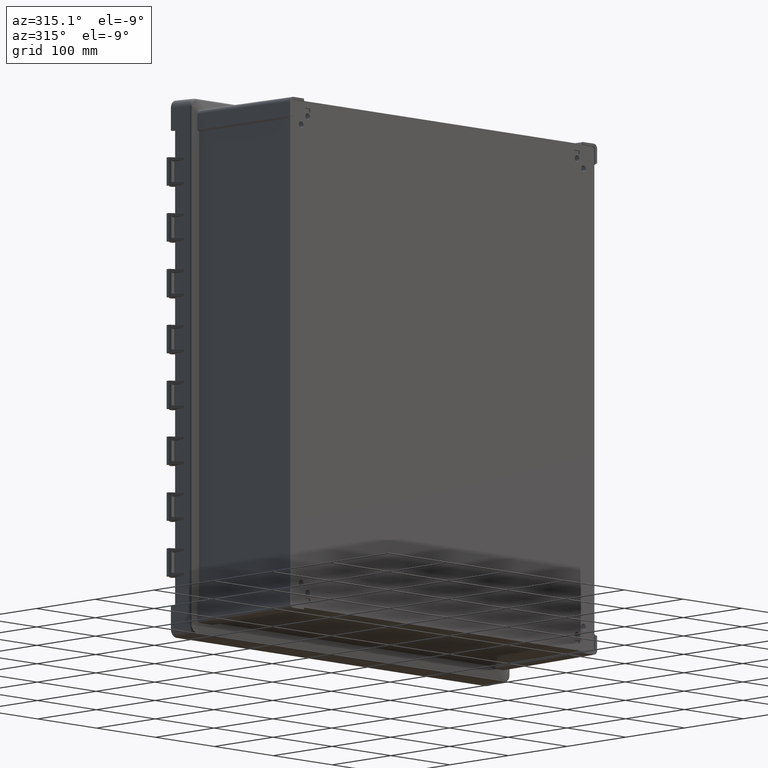
[diagram: clean part render]
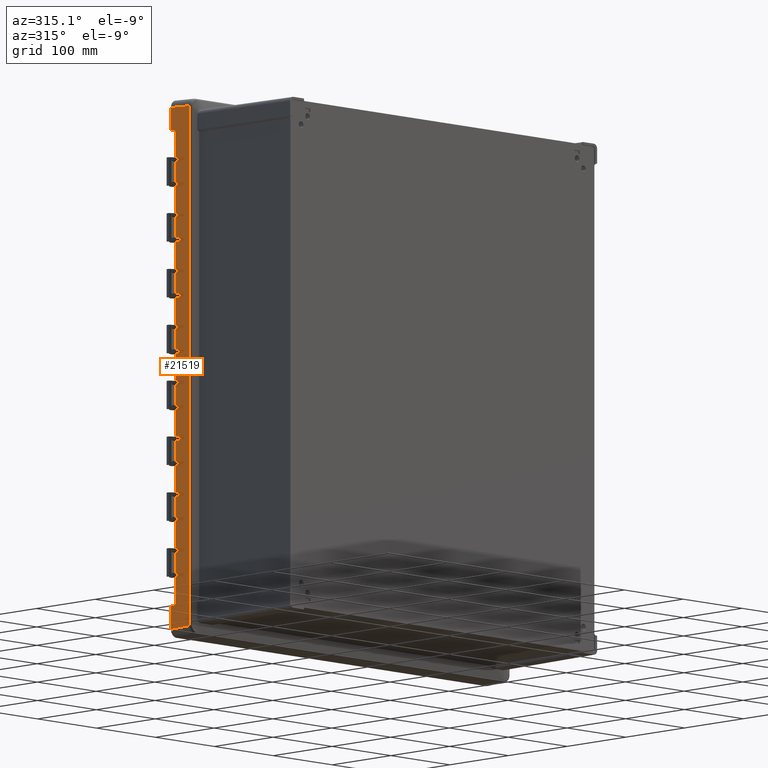
[diagram: same view with one face highlighted and labeled with its STEP entity id]
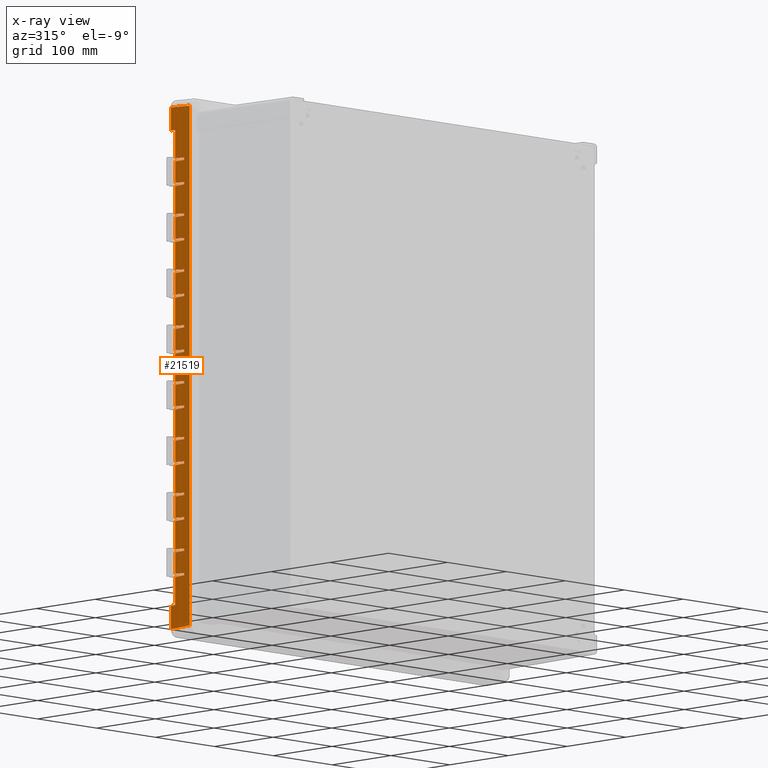
[diagram: x-ray of the same camera — body ghosted, the highlighted face saturated]
A machine part, auxiliary view. The second image highlights one B-rep face of the part: STEP entity #21519.
The next image is the same camera in x-ray: the body ghosted, the highlighted face saturated — about 0% of this face is hidden behind the body in this view.
In plain terms, the highlighted planar face has unit normal (0.9994, 0.0349, 0).
Its self-contained STEP definition (entity closure, byte-faithful):
#1 = CARTESIAN_POINT ( 'NONE',  ( -271.9580039343999800, -6.999361388910999800, -153.0121993393000000 ) ) ;
#148 = EDGE_CURVE ( 'NONE', #23516, #13764, #11030, .T. ) ;
#333 = B_SPLINE_CURVE_WITH_KNOTS ( 'NONE', 3,
 ( #31883, #28568, #25261, #21971 ),
 .UNSPECIFIED., .F., .F.,
 ( 4, 4 ),
 ( 0.0000000000000000000, 1.000000000000000000 ),
 .UNSPECIFIED. ) ;
#387 = CARTESIAN_POINT ( 'NONE',  ( -271.9487374812999900, -7.265037386868000300, -20.96629757770000100 ) ) ;
#389 = VERTEX_POINT ( 'NONE', #3688 ) ;
#590 = CARTESIAN_POINT ( 'NONE',  ( -271.9580039343999800, -6.999361388910999800, -254.9878006606999700 ) ) ;
#609 = CARTESIAN_POINT ( 'NONE',  ( -271.4868517443569000, -20.49171433716667700, -316.8397695707132000 ) ) ;
#739 = ORIENTED_EDGE ( 'NONE', *, *, #17993, .T. ) ;
#744 = CARTESIAN_POINT ( 'NONE',  ( -271.9580039343999800, -6.999361388910999800, -254.9878006606999700 ) ) ;
#783 = CARTESIAN_POINT ( 'NONE',  ( -271.4401431663999900, -21.82927300515000000, -85.81385471208000100 ) ) ;
#796 = LINE ( 'NONE', #29594, #10424 ) ;
#813 = LINE ( 'NONE', #29613, #29058 ) ;
#836 = CARTESIAN_POINT ( 'NONE',  ( -271.7853836784125300, -11.94181326210017800, -186.7043250958037700 ) ) ;
#883 = EDGE_CURVE ( 'NONE', #8977, #25975, #333, .T. ) ;
#885 = CARTESIAN_POINT ( 'NONE',  ( -271.9487374812999900, -7.265037386868000300, 224.9662975777000000 ) ) ;
#1099 = B_SPLINE_CURVE_WITH_KNOTS ( 'NONE', 3,
 ( #24529, #21255, #18014, #14690 ),
 .UNSPECIFIED., .F., .F.,
 ( 4, 4 ),
 ( 0.0000000000000000000, 1.000000000000000000 ),
 .UNSPECIFIED. ) ;
#1127 = DIRECTION ( 'NONE',  ( 0.03488975622333830700, -0.9991118664051519300, -0.02362590356134883200 ) ) ;
#1159 = ORIENTED_EDGE ( 'NONE', *, *, #13490, .T. ) ;
#1202 = CARTESIAN_POINT ( 'NONE',  ( -271.9487374812999900, -7.265037386868000300, 251.0337024223000000 ) ) ;
#1316 = CARTESIAN_POINT ( 'NONE',  ( -271.4401431663999900, -21.82927300515000000, 118.1861452879000000 ) ) ;
#1368 = CARTESIAN_POINT ( 'NONE',  ( -271.9580039343999800, -6.999361388910999800, 50.98780066065000900 ) ) ;
#1422 = ORIENTED_EDGE ( 'NONE', *, *, #2590, .F. ) ;
#1423 = ORIENTED_EDGE ( 'NONE', *, *, #2345, .F. ) ;
#1448 = CARTESIAN_POINT ( 'NONE',  ( -271.9487374812999900, -7.265037386868000300, -88.96629757770001800 ) ) ;
#1452 = CARTESIAN_POINT ( 'NONE',  ( -271.1284584484198500, -30.75475560869784900, -315.5152211894789500 ) ) ;
#1472 = CARTESIAN_POINT ( 'NONE',  ( -272.2024381772000100, 4.569145062304999800E-011, 317.5553565517000200 ) ) ;
#1473 = CARTESIAN_POINT ( 'NONE',  ( -271.9580039343999800, -6.999361388910999800, 153.0121993393000000 ) ) ;
#1487 = ORIENTED_EDGE ( 'NONE', *, *, #22057, .T. ) ;
#1545 = CARTESIAN_POINT ( 'NONE',  ( -271.4401431663999900, -21.82927300515000000, -115.5422969255000000 ) ) ;
#1643 = VECTOR ( 'NONE', #21373, 1000.000000000000000 ) ;
#1691 = VERTEX_POINT ( 'NONE', #19735 ) ;
#1711 = B_SPLINE_CURVE_WITH_KNOTS ( 'NONE', 3,
 ( #30933, #27605, #24287, #21029 ),
 .UNSPECIFIED., .F., .F.,
 ( 4, 4 ),
 ( 0.0000000000000000000, 1.000000000000000000 ),
 .UNSPECIFIED. ) ;
#1771 = EDGE_CURVE ( 'NONE', #25919, #22929, #5846, .T. ) ;
#1905 = DIRECTION ( 'NONE',  ( -0.03489949670248986700, 0.9993908270190959800, -1.623108325310993900E-014 ) ) ;
#2002 = DIRECTION ( 'NONE',  ( 0.03488975622333830700, -0.9991118664051519300, 0.02362590356134883200 ) ) ;
#2046 = ORIENTED_EDGE ( 'NONE', *, *, #29878, .F. ) ;
#2050 = LINE ( 'NONE', #30895, #24101 ) ;
#2095 = EDGE_CURVE ( 'NONE', #3093, #17792, #3737, .T. ) ;
#2127 = DIRECTION ( 'NONE',  ( 0.03488975622333830700, -0.9991118664051519300, -0.02362590356134883200 ) ) ;
#2150 = ORIENTED_EDGE ( 'NONE', *, *, #5595, .F. ) ;
#2204 = EDGE_CURVE ( 'NONE', #15825, #29527, #15696, .T. ) ;
#2230 = VERTEX_POINT ( 'NONE', #11566 ) ;
#2251 = DIRECTION ( 'NONE',  ( 0.03487826272667164000, -0.9987827655088469300, -0.03487827564070163800 ) ) ;
#2264 = EDGE_CURVE ( 'NONE', #4801, #4440, #23221, .T. ) ;
#2294 = VERTEX_POINT ( 'NONE', #31568 ) ;
#2345 = EDGE_CURVE ( 'NONE', #20068, #26999, #14281, .T. ) ;
#2420 = CARTESIAN_POINT ( 'NONE',  ( -272.2024381772000100, 0.0000000000000000000, -289.5000000000000000 ) ) ;
#2463 = CARTESIAN_POINT ( 'NONE',  ( -271.4401431663999900, -21.82927300515000000, 186.1861452879000200 ) ) ;
#2582 = DIRECTION ( 'NONE',  ( 0.03487826272667164000, -0.9987827655088469300, 0.03487827564070163800 ) ) ;
#2590 = EDGE_CURVE ( 'NONE', #9407, #10748, #6345, .T. ) ;
#2646 = ORIENTED_EDGE ( 'NONE', *, *, #7815, .F. ) ;
#2945 = CARTESIAN_POINT ( 'NONE',  ( -271.1289525165450400, -30.73805416583611800, -316.4820024408883800 ) ) ;
#2956 = CARTESIAN_POINT ( 'NONE',  ( -271.9487374812999900, -7.265037386868000300, -156.9662975777000000 ) ) ;
#2989 = VECTOR ( 'NONE', #18098, 1000.000000000000000 ) ;
#3009 = ORIENTED_EDGE ( 'NONE', *, *, #22256, .F. ) ;
#3086 = DIRECTION ( 'NONE',  ( 0.9993908269828162300, 0.03489949774141056600, -1.049165898959017000E-011 ) ) ;
#3093 = VERTEX_POINT ( 'NONE', #14473 ) ;
#3272 = CARTESIAN_POINT ( 'NONE',  ( -271.9487374812999900, -7.265037386868000300, 115.0337024223000000 ) ) ;
#3301 = CARTESIAN_POINT ( 'NONE',  ( -271.7853911074632300, -11.94266552041940000, 85.27941779692426400 ) ) ;
#3302 = EDGE_CURVE ( 'NONE', #27219, #12856, #26420, .T. ) ;
#3534 = ORIENTED_EDGE ( 'NONE', *, *, #31989, .T. ) ;
#3595 = ORIENTED_EDGE ( 'NONE', *, *, #4548, .T. ) ;
#3660 = CARTESIAN_POINT ( 'NONE',  ( -271.9580039343999800, -6.999361388910999800, 221.0121993393000000 ) ) ;
#3679 = LINE ( 'NONE', #387, #24246 ) ;
#3688 = CARTESIAN_POINT ( 'NONE',  ( -271.9487374812999900, -7.265037386868000300, 183.0337024223000000 ) ) ;
#3737 = LINE ( 'NONE', #19362, #26426 ) ;
#3741 = CARTESIAN_POINT ( 'NONE',  ( -271.9580039343999800, -6.999361388910999800, 254.9878006606999700 ) ) ;
#3844 = CARTESIAN_POINT ( 'NONE',  ( -271.4401431663999900, -21.82927300515000000, 254.1861452879000200 ) ) ;
#3864 = EDGE_CURVE ( 'NONE', #15208, #25045, #30565, .T. ) ;
#3897 = CARTESIAN_POINT ( 'NONE',  ( -271.1289525165450400, -30.73805416583611800, -316.4820024408883800 ) ) ;
#3911 = VERTEX_POINT ( 'NONE', #12231 ) ;
#3994 = VECTOR ( 'NONE', #13965, 1000.000000000000100 ) ;
#4083 = ORIENTED_EDGE ( 'NONE', *, *, #14562, .F. ) ;
#4106 = CARTESIAN_POINT ( 'NONE',  ( -271.9580039343999800, -6.999361388910999800, -186.9878006607000000 ) ) ;
#4121 = EDGE_CURVE ( 'NONE', #24491, #25277, #27321, .T. ) ;
#4169 = VECTOR ( 'NONE', #20344, 1000.000000000000100 ) ;
#4207 = CARTESIAN_POINT ( 'NONE',  ( -271.9487374812999900, -7.265037386868000300, 156.9662975777000000 ) ) ;
#4221 = VECTOR ( 'NONE', #32093, 1000.000000000000100 ) ;
#4247 = CARTESIAN_POINT ( 'NONE',  ( -271.9487374812999900, -7.265037386868000300, 47.03370242230000300 ) ) ;
#4351 = DIRECTION ( 'NONE',  ( 0.03487826272667164000, -0.9987827655088469300, -0.03487827564070163800 ) ) ;
#4409 = DIRECTION ( 'NONE',  ( -0.9993908269828162300, -0.03489949774141056600, -1.049165897389017000E-011 ) ) ;
#4440 = VERTEX_POINT ( 'NONE', #4906 ) ;
#4460 = CARTESIAN_POINT ( 'NONE',  ( -271.9580039343999800, -6.999361388910999800, 254.9878006606999700 ) ) ;
#4511 = ORIENTED_EDGE ( 'NONE', *, *, #18820, .T. ) ;
#4519 = CARTESIAN_POINT ( 'NONE',  ( -271.9580039343999800, -6.999361388910999800, 221.0121993393000000 ) ) ;
#4548 = EDGE_CURVE ( 'NONE', #8242, #10362, #26489, .T. ) ;
#4560 = CARTESIAN_POINT ( 'NONE',  ( -271.9580039343999800, -6.999361388910999800, -118.9878006607000000 ) ) ;
#4573 = VERTEX_POINT ( 'NONE', #22462 ) ;
#4622 = B_SPLINE_CURVE_WITH_KNOTS ( 'NONE', 3,
 ( #4560, #30104, #26752, #23478 ),
 .UNSPECIFIED., .F., .F.,
 ( 4, 4 ),
 ( 0.0000000000000000000, 1.000000000000000000 ),
 .UNSPECIFIED. ) ;
#4764 = VECTOR ( 'NONE', #14258, 1000.000000000000100 ) ;
#4779 = DIRECTION ( 'NONE',  ( 0.0000000000000000000, 0.0000000000000000000, 1.000000000000000000 ) ) ;
#4786 = CARTESIAN_POINT ( 'NONE',  ( -271.7853911074633400, -11.94266552041688500, 153.2794177969442400 ) ) ;
#4801 = VERTEX_POINT ( 'NONE', #19318 ) ;
#4879 = VECTOR ( 'NONE', #1905, 1000.000000000000100 ) ;
#4906 = CARTESIAN_POINT ( 'NONE',  ( -271.4401431663999900, -21.82927300515000000, 221.8138547121000100 ) ) ;
#5013 = VECTOR ( 'NONE', #4351, 1000.000000000000100 ) ;
#5064 = ORIENTED_EDGE ( 'NONE', *, *, #27520, .T. ) ;
#5118 = B_SPLINE_CURVE_WITH_KNOTS ( 'NONE', 3,
 ( #14346, #11031, #7789, #4519 ),
 .UNSPECIFIED., .F., .F.,
 ( 4, 4 ),
 ( 0.0000000000000000000, 1.000000000000000000 ),
 .UNSPECIFIED. ) ;
#5120 = B_SPLINE_CURVE_WITH_KNOTS ( 'NONE', 3,
 ( #3897, #609, #29405, #26083 ),
 .UNSPECIFIED., .F., .F.,
 ( 4, 4 ),
 ( 0.0000000000000000000, 1.000000000000000000 ),
 .UNSPECIFIED. ) ;
#5145 = ORIENTED_EDGE ( 'NONE', *, *, #8954, .F. ) ;
#5153 = ORIENTED_EDGE ( 'NONE', *, *, #14113, .F. ) ;
#5155 = EDGE_CURVE ( 'NONE', #4440, #20788, #28851, .T. ) ;
#5189 = DIRECTION ( 'NONE',  ( 0.03487826272667164000, -0.9987827655088469300, 0.03487827564070163800 ) ) ;
#5204 = EDGE_CURVE ( 'NONE', #20068, #27592, #1711, .T. ) ;
#5212 = VERTEX_POINT ( 'NONE', #1316 ) ;
#5238 = CARTESIAN_POINT ( 'NONE',  ( -271.9579927908000100, -7.000000000000000000, 289.5000000000000000 ) ) ;
#5341 = DIRECTION ( 'NONE',  ( 0.9993908269828162300, 0.03489949774141056600, -1.049165898959017000E-011 ) ) ;
#5393 = VECTOR ( 'NONE', #7591, 1000.000000000000000 ) ;
#5454 = EDGE_CURVE ( 'NONE', #29329, #10340, #11669, .T. ) ;
#5455 = DIRECTION ( 'NONE',  ( -0.9993908269828162300, -0.03489949774141056600, -1.049165897389017000E-011 ) ) ;
#5466 = ORIENTED_EDGE ( 'NONE', *, *, #2095, .F. ) ;
#5468 = ORIENTED_EDGE ( 'NONE', *, *, #7202, .T. ) ;
#5568 = CARTESIAN_POINT ( 'NONE',  ( -271.9487374812999900, -7.265037386868000300, -47.03370242230000300 ) ) ;
#5595 = EDGE_CURVE ( 'NONE', #15424, #9378, #11264, .T. ) ;
#5625 = B_SPLINE_CURVE_WITH_KNOTS ( 'NONE', 3,
 ( #21438, #18195, #14870, #11532 ),
 .UNSPECIFIED., .F., .F.,
 ( 4, 4 ),
 ( 0.0000000000000000000, 1.000000000000000000 ),
 .UNSPECIFIED. ) ;
#5732 = LINE ( 'NONE', #2420, #16580 ) ;
#5775 = LINE ( 'NONE', #2463, #6254 ) ;
#5790 = EDGE_CURVE ( 'NONE', #15064, #20289, #25385, .T. ) ;
#5814 = DIRECTION ( 'NONE',  ( 0.03487826272667164000, -0.9987827655088469300, -0.03487827564070163800 ) ) ;
#5846 = LINE ( 'NONE', #28055, #27790 ) ;
#5884 = CARTESIAN_POINT ( 'NONE',  ( -271.9487374812999900, -7.265037386868000300, 183.0337024223000000 ) ) ;
#6034 = CARTESIAN_POINT ( 'NONE',  ( -271.9580039343999800, -6.999361388910999800, 153.0121993393000000 ) ) ;
#6055 = CARTESIAN_POINT ( 'NONE',  ( -271.9580039343999800, -6.999361388910999800, 17.01219933935000100 ) ) ;
#6226 = LINE ( 'NONE', #2956, #18797 ) ;
#6254 = VECTOR ( 'NONE', #31293, 1000.000000000000000 ) ;
#6278 = EDGE_CURVE ( 'NONE', #7953, #2230, #32030, .T. ) ;
#6340 = CARTESIAN_POINT ( 'NONE',  ( -274.0036125968000000, 51.57888435761000100, 314.5348813639000100 ) ) ;
#6345 = LINE ( 'NONE', #31905, #24253 ) ;
#6522 = LINE ( 'NONE', #3272, #4221 ) ;
#6553 = CARTESIAN_POINT ( 'NONE',  ( -271.6127671369484300, -16.88596926278529200, 85.54663625450213300 ) ) ;
#6763 = CARTESIAN_POINT ( 'NONE',  ( -271.4401431663999900, -21.82927300515000000, 17.81385471208000500 ) ) ;
#6773 = CARTESIAN_POINT ( 'NONE',  ( -271.4401431663999900, -21.82927300515000000, -224.4577030744999900 ) ) ;
#6897 = CARTESIAN_POINT ( 'NONE',  ( -272.2024381772000100, 4.569145062304999800E-011, 317.5553565517000200 ) ) ;
#6903 = ORIENTED_EDGE ( 'NONE', *, *, #15322, .T. ) ;
#6908 = CARTESIAN_POINT ( 'NONE',  ( -271.7853911074633400, -11.94266552041688500, 221.2794177969442700 ) ) ;
#6963 = VERTEX_POINT ( 'NONE', #10620 ) ;
#7005 = VERTEX_POINT ( 'NONE', #6034 ) ;
#7068 = ORIENTED_EDGE ( 'NONE', *, *, #22906, .T. ) ;
#7202 = EDGE_CURVE ( 'NONE', #29527, #26999, #18003, .T. ) ;
#7348 = EDGE_CURVE ( 'NONE', #15875, #25919, #8458, .T. ) ;
#7361 = EDGE_CURVE ( 'NONE', #24055, #15009, #20862, .T. ) ;
#7390 = CARTESIAN_POINT ( 'NONE',  ( -271.4401431663999900, -21.82927300515000000, -50.18614528791999900 ) ) ;
#7502 = EDGE_CURVE ( 'NONE', #9378, #9157, #6522, .T. ) ;
#7591 = DIRECTION ( 'NONE',  ( 0.0000000000000000000, 0.0000000000000000000, -1.000000000000000000 ) ) ;
#7620 = CARTESIAN_POINT ( 'NONE',  ( -271.9487374812999900, -7.265037386868000300, 156.9662975777000000 ) ) ;
#7663 = CARTESIAN_POINT ( 'NONE',  ( -271.4401431663999900, -21.82927300515000000, 118.1861452879000000 ) ) ;
#7745 = CARTESIAN_POINT ( 'NONE',  ( -271.4401431663999900, -21.82927300515000000, -254.1861452879000200 ) ) ;
#7789 = CARTESIAN_POINT ( 'NONE',  ( -271.9580039343999800, -7.000000000000000000, 209.6707331131000000 ) ) ;
#7815 = EDGE_CURVE ( 'NONE', #14844, #15208, #24615, .T. ) ;
#7865 = VERTEX_POINT ( 'NONE', #885 ) ;
#7869 = ORIENTED_EDGE ( 'NONE', *, *, #29037, .F. ) ;
#7953 = VERTEX_POINT ( 'NONE', #19204 ) ;
#8025 = CARTESIAN_POINT ( 'NONE',  ( -271.9487374812999900, -7.265037386868000300, 88.96629757770001800 ) ) ;
#8030 = CARTESIAN_POINT ( 'NONE',  ( -271.6127671369484300, -16.88596926278403000, 153.5466362545221000 ) ) ;
#8242 = VERTEX_POINT ( 'NONE', #11406 ) ;
#8259 = ORIENTED_EDGE ( 'NONE', *, *, #22706, .T. ) ;
#8285 = VECTOR ( 'NONE', #5814, 1000.000000000000100 ) ;
#8328 = ORIENTED_EDGE ( 'NONE', *, *, #9260, .F. ) ;
#8351 = ORIENTED_EDGE ( 'NONE', *, *, #883, .T. ) ;
#8377 = CARTESIAN_POINT ( 'NONE',  ( -271.9487374812999900, -7.265037386868000300, -20.96629757770000100 ) ) ;
#8414 = CARTESIAN_POINT ( 'NONE',  ( -271.9487374812999900, -7.265037386868000300, 47.03370242230000300 ) ) ;
#8458 = LINE ( 'NONE', #5238, #4879 ) ;
#8483 = VERTEX_POINT ( 'NONE', #13382 ) ;
#8548 = CARTESIAN_POINT ( 'NONE',  ( -274.0036125968000000, 51.57888435761000100, 314.5348813639000100 ) ) ;
#8556 = DIRECTION ( 'NONE',  ( -0.03489949670248986700, 0.9993908270190959800, 1.623108325310993900E-014 ) ) ;
#8693 = CARTESIAN_POINT ( 'NONE',  ( -271.9487374812999900, -7.265037386868000300, -115.0337024223000000 ) ) ;
#8720 = CARTESIAN_POINT ( 'NONE',  ( -271.9580039343999800, -6.999361388910999800, -221.0121993393000000 ) ) ;
#8759 = CARTESIAN_POINT ( 'NONE',  ( -271.9580039343999800, -6.999361388910999800, -153.0121993393000000 ) ) ;
#8783 = LINE ( 'NONE', #5568, #25761 ) ;
#8794 = VECTOR ( 'NONE', #17427, 1000.000000000000100 ) ;
#8898 = CARTESIAN_POINT ( 'NONE',  ( -271.4401431663999900, -21.82927300515000000, -118.1861452879000000 ) ) ;
#8931 = CARTESIAN_POINT ( 'NONE',  ( -271.9580039343999800, -6.999361388910999800, 221.0121993393000000 ) ) ;
#8946 = CARTESIAN_POINT ( 'NONE',  ( -271.4401431663999900, -21.82927300515000000, -85.81385471208000100 ) ) ;
#8954 = EDGE_CURVE ( 'NONE', #18264, #14844, #23824, .T. ) ;
#8977 = VERTEX_POINT ( 'NONE', #10669 ) ;
#9025 = CARTESIAN_POINT ( 'NONE',  ( -271.9487374812999900, -7.265037386868000300, 20.96629757770000100 ) ) ;
#9063 = DIRECTION ( 'NONE',  ( 0.0000000000000000000, 0.0000000000000000000, -1.000000000000000000 ) ) ;
#9157 = VERTEX_POINT ( 'NONE', #29445 ) ;
#9247 = VERTEX_POINT ( 'NONE', #30438 ) ;
#9260 = EDGE_CURVE ( 'NONE', #19953, #3093, #11229, .T. ) ;
#9310 = CARTESIAN_POINT ( 'NONE',  ( -271.4401431663999900, -21.82927300515000000, 156.4577030744999900 ) ) ;
#9378 = VERTEX_POINT ( 'NONE', #30818 ) ;
#9407 = VERTEX_POINT ( 'NONE', #1202 ) ;
#9468 = CARTESIAN_POINT ( 'NONE',  ( -271.9579927908000100, -7.000000000000000000, 289.5000000000000000 ) ) ;
#9617 = DIRECTION ( 'NONE',  ( 0.0000000000000000000, 0.0000000000000000000, -1.000000000000000000 ) ) ;
#9694 = EDGE_CURVE ( 'NONE', #23697, #20289, #23946, .T. ) ;
#9806 = CARTESIAN_POINT ( 'NONE',  ( -271.4401431663999900, -21.82927300515000000, 85.81385471208000100 ) ) ;
#9861 = ORIENTED_EDGE ( 'NONE', *, *, #10267, .T. ) ;
#9878 = CARTESIAN_POINT ( 'NONE',  ( -271.4401431663999900, -21.82927300515000000, 50.18614528791999900 ) ) ;
#9907 = CIRCLE ( 'NONE', #15453, 82.38965861949999700 ) ;
#10104 = EDGE_CURVE ( 'NONE', #30484, #29329, #18396, .T. ) ;
#10136 = VERTEX_POINT ( 'NONE', #4460 ) ;
#10159 = CARTESIAN_POINT ( 'NONE',  ( -271.8446449607902200, -10.24585716856099900, 317.1975630612095600 ) ) ;
#10171 = CARTESIAN_POINT ( 'NONE',  ( -271.6127671369484300, -16.88596926278403000, 221.5466362545221600 ) ) ;
#10217 = EDGE_CURVE ( 'NONE', #17859, #23226, #20649, .T. ) ;
#10232 = ORIENTED_EDGE ( 'NONE', *, *, #5790, .F. ) ;
#10267 = EDGE_CURVE ( 'NONE', #26487, #6963, #27748, .T. ) ;
#10340 = VERTEX_POINT ( 'NONE', #23709 ) ;
#10362 = VERTEX_POINT ( 'NONE', #10735 ) ;
#10372 = ORIENTED_EDGE ( 'NONE', *, *, #3864, .F. ) ;
#10424 = VECTOR ( 'NONE', #26262, 1000.000000000000000 ) ;
#10620 = CARTESIAN_POINT ( 'NONE',  ( -271.9579927908000100, -7.000000000000000000, -289.5000000000000000 ) ) ;
#10643 = CARTESIAN_POINT ( 'NONE',  ( -271.6127634224251300, -16.88554313362643100, -50.44523519186184800 ) ) ;
#10659 = DIRECTION ( 'NONE',  ( 0.03487826272667164000, -0.9987827655088469300, -0.03487827564070163800 ) ) ;
#10669 = CARTESIAN_POINT ( 'NONE',  ( -271.9580039343999800, -6.999361388910999800, -118.9878006607000000 ) ) ;
#10716 = CARTESIAN_POINT ( 'NONE',  ( -271.4401431663999900, -21.82927300515000000, -254.1861452879000200 ) ) ;
#10735 = CARTESIAN_POINT ( 'NONE',  ( -271.9487374812999900, -7.265037386868000300, -183.0337024223000000 ) ) ;
#10748 = VERTEX_POINT ( 'NONE', #22646 ) ;
#10773 = EDGE_CURVE ( 'NONE', #8242, #8483, #6226, .T. ) ;
#10841 = CARTESIAN_POINT ( 'NONE',  ( -271.4401431663999900, -21.82927300515000000, 254.1861452879000200 ) ) ;
#10870 = LINE ( 'NONE', #7620, #5013 ) ;
#10886 = CARTESIAN_POINT ( 'NONE',  ( -271.4401431663999900, -21.82927300515000000, -186.1861452879000200 ) ) ;
#10900 = ORIENTED_EDGE ( 'NONE', *, *, #10217, .T. ) ;
#10909 = CARTESIAN_POINT ( 'NONE',  ( -271.6127671369483200, -16.88596926278760100, 118.4533637455440200 ) ) ;
#11030 = B_SPLINE_CURVE_WITH_KNOTS ( 'NONE', 3,
 ( #4106, #836, #29635, #26296 ),
 .UNSPECIFIED., .F., .F.,
 ( 4, 4 ),
 ( 0.0000000000000000000, 1.000000000000000000 ),
 .UNSPECIFIED. ) ;
#11031 = CARTESIAN_POINT ( 'NONE',  ( -271.9580039343999800, -7.000000000000000000, 198.3292668869000000 ) ) ;
#11133 = ORIENTED_EDGE ( 'NONE', *, *, #12022, .F. ) ;
#11197 = ORIENTED_EDGE ( 'NONE', *, *, #12263, .T. ) ;
#11229 = B_SPLINE_CURVE_WITH_KNOTS ( 'NONE', 3,
 ( #17265, #13934, #10643, #7390 ),
 .UNSPECIFIED., .F., .F.,
 ( 4, 4 ),
 ( 0.0000000000000000000, 1.000000000000000000 ),
 .UNSPECIFIED. ) ;
#11257 = ORIENTED_EDGE ( 'NONE', *, *, #18755, .F. ) ;
#11264 = LINE ( 'NONE', #8025, #12061 ) ;
#11268 = CARTESIAN_POINT ( 'NONE',  ( -271.4401431663999900, -21.82927300515000000, 153.8138547121000100 ) ) ;
#11296 = VECTOR ( 'NONE', #18821, 1000.000000000000000 ) ;
#11406 = CARTESIAN_POINT ( 'NONE',  ( -271.9487374812999900, -7.265037386868000300, -156.9662975777000000 ) ) ;
#11414 = ORIENTED_EDGE ( 'NONE', *, *, #2204, .T. ) ;
#11468 = CARTESIAN_POINT ( 'NONE',  ( -271.9580039343999800, -6.999361388910999800, 153.0121993393000000 ) ) ;
#11498 = VERTEX_POINT ( 'NONE', #3844 ) ;
#11532 = CARTESIAN_POINT ( 'NONE',  ( -271.4401431663999900, -21.82927300515000000, 254.1861452879000200 ) ) ;
#11566 = CARTESIAN_POINT ( 'NONE',  ( -271.4401431663999900, -21.82927300515000000, 186.1861452879000200 ) ) ;
#11608 = VERTEX_POINT ( 'NONE', #21761 ) ;
#11669 = LINE ( 'NONE', #8414, #12617 ) ;
#11742 = DIRECTION ( 'NONE',  ( 0.0000000000000000000, 0.0000000000000000000, 1.000000000000000000 ) ) ;
#11749 = VECTOR ( 'NONE', #9617, 1000.000000000000000 ) ;
#11818 = VECTOR ( 'NONE', #15408, 1000.000000000000000 ) ;
#11828 = CARTESIAN_POINT ( 'NONE',  ( -271.9579927908000100, -7.000000000000000000, -289.5000000000000000 ) ) ;
#11856 = ORIENTED_EDGE ( 'NONE', *, *, #5454, .F. ) ;
#11894 = DIRECTION ( 'NONE',  ( 0.0000000000000000000, 0.0000000000000000000, -1.000000000000000000 ) ) ;
#11947 = CARTESIAN_POINT ( 'NONE',  ( -274.0036125968000000, 51.57888435761000100, -314.5348813639000100 ) ) ;
#12009 = CARTESIAN_POINT ( 'NONE',  ( -271.9580150779781300, -6.999361778053322600, -209.6707331131000000 ) ) ;
#12022 = EDGE_CURVE ( 'NONE', #7953, #20788, #5118, .T. ) ;
#12051 = CARTESIAN_POINT ( 'NONE',  ( -271.7853836783749600, -11.94181326209892000, -153.2956749041929900 ) ) ;
#12057 = VERTEX_POINT ( 'NONE', #28486 ) ;
#12061 = VECTOR ( 'NONE', #4779, 1000.000000000000000 ) ;
#12217 = CARTESIAN_POINT ( 'NONE',  ( -271.9580039343999800, -6.999361388910999800, -221.0121993393000000 ) ) ;
#12231 = CARTESIAN_POINT ( 'NONE',  ( -271.9580039343999800, -6.999361388910999800, -85.01219933935000500 ) ) ;
#12263 = EDGE_CURVE ( 'NONE', #23226, #25141, #23979, .T. ) ;
#12300 = ORIENTED_EDGE ( 'NONE', *, *, #31377, .T. ) ;
#12334 = LINE ( 'NONE', #9025, #8285 ) ;
#12340 = VERTEX_POINT ( 'NONE', #6055 ) ;
#12372 = CARTESIAN_POINT ( 'NONE',  ( -271.4401431663999900, -21.82927300515000000, 88.45770307454000700 ) ) ;
#12402 = VECTOR ( 'NONE', #24007, 1000.000000000000100 ) ;
#12543 = ORIENTED_EDGE ( 'NONE', *, *, #19995, .F. ) ;
#12568 = CARTESIAN_POINT ( 'NONE',  ( -271.4401431663999900, -21.82927300515000000, -183.5422969255000100 ) ) ;
#12576 = DIRECTION ( 'NONE',  ( 0.0000000000000000000, 0.0000000000000000000, 1.000000000000000000 ) ) ;
#12617 = VECTOR ( 'NONE', #5189, 1000.000000000000100 ) ;
#12736 = EDGE_CURVE ( 'NONE', #19434, #389, #813, .T. ) ;
#12737 = ORIENTED_EDGE ( 'NONE', *, *, #22042, .F. ) ;
#12795 = CARTESIAN_POINT ( 'NONE',  ( -271.9579965053204700, -7.000000000000000000, 277.9959335535666600 ) ) ;
#12856 = VERTEX_POINT ( 'NONE', #6763 ) ;
#12873 = VERTEX_POINT ( 'NONE', #12568 ) ;
#12917 = VECTOR ( 'NONE', #15331, 1000.000000000000000 ) ;
#12939 = CARTESIAN_POINT ( 'NONE',  ( -271.9487374812999900, -7.265037386868000300, -88.96629757770001800 ) ) ;
#13018 = CARTESIAN_POINT ( 'NONE',  ( -271.9580039343999800, -6.999361388910999800, -17.01219933935000100 ) ) ;
#13382 = CARTESIAN_POINT ( 'NONE',  ( -271.4401431663999900, -21.82927300515000000, -156.4577030744999900 ) ) ;
#13468 = CARTESIAN_POINT ( 'NONE',  ( -271.4868517443599100, -20.49171433716693600, 316.8397695707175200 ) ) ;
#13482 = CARTESIAN_POINT ( 'NONE',  ( -271.4401431663999900, -21.82927300515000000, 221.8138547121000100 ) ) ;
#13486 = B_SPLINE_CURVE_WITH_KNOTS ( 'NONE', 3,
 ( #25569, #18135, #14812, #11468 ),
 .UNSPECIFIED., .F., .F.,
 ( 4, 4 ),
 ( 0.0000000000000000000, 1.000000000000000000 ),
 .UNSPECIFIED. ) ;
#13490 = EDGE_CURVE ( 'NONE', #30896, #17792, #8783, .T. ) ;
#13613 = ORIENTED_EDGE ( 'NONE', *, *, #5155, .T. ) ;
#13764 = VERTEX_POINT ( 'NONE', #10886 ) ;
#13831 = VERTEX_POINT ( 'NONE', #21155 ) ;
#13912 = DIRECTION ( 'NONE',  ( 0.0000000000000000000, 0.0000000000000000000, 1.000000000000000000 ) ) ;
#13934 = CARTESIAN_POINT ( 'NONE',  ( -271.7853836784125300, -11.94181326210153500, -50.70432509580368200 ) ) ;
#13955 = CARTESIAN_POINT ( 'NONE',  ( -271.9487374812999900, -7.265037386868000300, 224.9662975777000000 ) ) ;
#13965 = DIRECTION ( 'NONE',  ( 0.03487826272667164000, -0.9987827655088469300, 0.03487827564070163800 ) ) ;
#14007 = CARTESIAN_POINT ( 'NONE',  ( -271.6127634224250200, -16.88554313362632800, -254.4452351918618500 ) ) ;
#14013 = CARTESIAN_POINT ( 'NONE',  ( -271.9579927908000100, -7.000000000000000000, 289.5000000000000000 ) ) ;
#14068 = VECTOR ( 'NONE', #8556, 1000.000000000000100 ) ;
#14094 = EDGE_CURVE ( 'NONE', #27592, #10340, #27966, .T. ) ;
#14113 = EDGE_CURVE ( 'NONE', #26487, #15064, #23181, .T. ) ;
#14204 = AXIS2_PLACEMENT_3D ( 'NONE', #11947, #5455, #2127 ) ;
#14216 = CARTESIAN_POINT ( 'NONE',  ( -271.7853911074632300, -11.94266552042046200, 118.7205822031220100 ) ) ;
#14258 = DIRECTION ( 'NONE',  ( 0.03487826272667163300, -0.9987827655088465900, 0.03487827564071162300 ) ) ;
#14262 = ORIENTED_EDGE ( 'NONE', *, *, #27439, .T. ) ;
#14281 = B_SPLINE_CURVE_WITH_KNOTS ( 'NONE', 3,
 ( #1368, #30212, #26860, #23576 ),
 .UNSPECIFIED., .F., .F.,
 ( 4, 4 ),
 ( 0.0000000000000000000, 1.000000000000000000 ),
 .UNSPECIFIED. ) ;
#14346 = CARTESIAN_POINT ( 'NONE',  ( -271.9580039343999800, -6.999361388910999800, 186.9878006607000000 ) ) ;
#14352 = CARTESIAN_POINT ( 'NONE',  ( -271.9487374812999900, -7.265037386868000300, -224.9662975777000000 ) ) ;
#14473 = CARTESIAN_POINT ( 'NONE',  ( -271.4401431663999900, -21.82927300515000000, -50.18614528791999900 ) ) ;
#14562 = EDGE_CURVE ( 'NONE', #15009, #11608, #31039, .T. ) ;
#14629 = EDGE_CURVE ( 'NONE', #11608, #21288, #21984, .T. ) ;
#14690 = CARTESIAN_POINT ( 'NONE',  ( -271.9580039343999800, -6.999361388910999800, -17.01219933935000100 ) ) ;
#14812 = CARTESIAN_POINT ( 'NONE',  ( -271.9580039343999800, -7.000000000000000000, 141.6707331131000000 ) ) ;
#14844 = VERTEX_POINT ( 'NONE', #19365 ) ;
#14847 = EDGE_CURVE ( 'NONE', #10136, #15875, #31991, .T. ) ;
#14864 = CARTESIAN_POINT ( 'NONE',  ( -271.4401431663999900, -21.82927300515000000, -88.45770307454000700 ) ) ;
#14870 = CARTESIAN_POINT ( 'NONE',  ( -271.6127671369483200, -16.88596926278759700, 254.4533637455440100 ) ) ;
#14954 = VECTOR ( 'NONE', #12576, 1000.000000000000000 ) ;
#14976 = CARTESIAN_POINT ( 'NONE',  ( -271.1284584484198500, -30.75475560869784900, 315.5152211894789500 ) ) ;
#15009 = VERTEX_POINT ( 'NONE', #6773 ) ;
#15064 = VERTEX_POINT ( 'NONE', #7745 ) ;
#15085 = ORIENTED_EDGE ( 'NONE', *, *, #24107, .T. ) ;
#15094 = CARTESIAN_POINT ( 'NONE',  ( -271.9487374812999900, -7.265037386868000300, 20.96629757770000100 ) ) ;
#15128 = VERTEX_POINT ( 'NONE', #2945 ) ;
#15181 = LINE ( 'NONE', #11828, #14068 ) ;
#15208 = VERTEX_POINT ( 'NONE', #18012 ) ;
#15248 = VECTOR ( 'NONE', #22348, 1000.000000000000000 ) ;
#15251 = CARTESIAN_POINT ( 'NONE',  ( -271.9487374812999900, -7.265037386868000300, -224.9662975777000000 ) ) ;
#15322 = EDGE_CURVE ( 'NONE', #10136, #11498, #5625, .T. ) ;
#15331 = DIRECTION ( 'NONE',  ( 0.0000000000000000000, 0.0000000000000000000, 1.000000000000000000 ) ) ;
#15355 = CARTESIAN_POINT ( 'NONE',  ( -271.9580150779781300, -6.999361778053322600, -198.3292668869000000 ) ) ;
#15389 = CARTESIAN_POINT ( 'NONE',  ( -271.6127634223874500, -16.88554313362507400, -153.5547648081349100 ) ) ;
#15408 = DIRECTION ( 'NONE',  ( 0.0000000000000000000, 0.0000000000000000000, -1.000000000000000000 ) ) ;
#15424 = VERTEX_POINT ( 'NONE', #20869 ) ;
#15453 = AXIS2_PLACEMENT_3D ( 'NONE', #17564, #4409, #1127 ) ;
#15457 = EDGE_CURVE ( 'NONE', #18264, #30896, #3679, .T. ) ;
#15531 = CARTESIAN_POINT ( 'NONE',  ( -271.9580039343999800, -6.999361388910999800, -221.0121993393000000 ) ) ;
#15544 = CARTESIAN_POINT ( 'NONE',  ( -271.7853836783749600, -11.94181326209892000, -221.2956749041929900 ) ) ;
#15594 = CARTESIAN_POINT ( 'NONE',  ( -271.4401431663999900, -21.82927300515000000, -251.5422969255000100 ) ) ;
#15656 = B_SPLINE_CURVE_WITH_KNOTS ( 'NONE', 3,
 ( #16772, #13468, #10159, #6897 ),
 .UNSPECIFIED., .F., .F.,
 ( 4, 4 ),
 ( 0.0000000000000000000, 1.000000000000000000 ),
 .UNSPECIFIED. ) ;
#15696 = LINE ( 'NONE', #12372, #26058 ) ;
#15777 = CARTESIAN_POINT ( 'NONE',  ( -272.2024381772000100, 0.0000000000000000000, -289.5000000000000000 ) ) ;
#15825 = VERTEX_POINT ( 'NONE', #20066 ) ;
#15827 = EDGE_CURVE ( 'NONE', #12057, #22929, #15656, .T. ) ;
#15863 = CARTESIAN_POINT ( 'NONE',  ( -271.9580039343999800, -6.999361388910999800, -85.01219933935000500 ) ) ;
#15875 = VERTEX_POINT ( 'NONE', #14013 ) ;
#15886 = CARTESIAN_POINT ( 'NONE',  ( -271.4401431663999900, -21.82927300515000000, -186.1861452879000200 ) ) ;
#16096 = DIRECTION ( 'NONE',  ( 0.0000000000000000000, 0.0000000000000000000, 1.000000000000000000 ) ) ;
#16099 = CARTESIAN_POINT ( 'NONE',  ( -271.9580002198602000, -7.000000000000000000, 266.4918671071333200 ) ) ;
#16194 = VERTEX_POINT ( 'NONE', #8946 ) ;
#16203 = EDGE_CURVE ( 'NONE', #20404, #9247, #5732, .T. ) ;
#16239 = LINE ( 'NONE', #12939, #11749 ) ;
#16260 = CARTESIAN_POINT ( 'NONE',  ( -271.4401431663999900, -21.82927300515000000, 186.1861452879000200 ) ) ;
#16317 = CARTESIAN_POINT ( 'NONE',  ( -271.7853836783748400, -11.94181326210038900, -17.29567490419307800 ) ) ;
#16332 = ORIENTED_EDGE ( 'NONE', *, *, #10104, .F. ) ;
#16552 = CARTESIAN_POINT ( 'NONE',  ( -271.9580039343999800, -6.999361388910999800, 85.01219933935000500 ) ) ;
#16580 = VECTOR ( 'NONE', #31246, 1000.000000000000000 ) ;
#16648 = DIRECTION ( 'NONE',  ( 0.0000000000000000000, 0.0000000000000000000, -1.000000000000000000 ) ) ;
#16702 = DIRECTION ( 'NONE',  ( 0.0000000000000000000, 0.0000000000000000000, 1.000000000000000000 ) ) ;
#16714 = EDGE_CURVE ( 'NONE', #7865, #4801, #23813, .T. ) ;
#16768 = EDGE_CURVE ( 'NONE', #12856, #12340, #29884, .T. ) ;
#16772 = CARTESIAN_POINT ( 'NONE',  ( -271.1290267267593200, -30.73805656052188300, 316.4819968739783500 ) ) ;
#16808 = VECTOR ( 'NONE', #19959, 1000.000000000000000 ) ;
#16822 = B_SPLINE_CURVE_WITH_KNOTS ( 'NONE', 3,
 ( #20826, #14216, #10909, #7663 ),
 .UNSPECIFIED., .F., .F.,
 ( 4, 4 ),
 ( 0.0000000000000000000, 1.000000000000000000 ),
 .UNSPECIFIED. ) ;
#16876 = ORIENTED_EDGE ( 'NONE', *, *, #19865, .F. ) ;
#16931 = EDGE_CURVE ( 'NONE', #23720, #24491, #16239, .T. ) ;
#17237 = CARTESIAN_POINT ( 'NONE',  ( -271.4401431663999900, -21.82927300515000000, -88.45770307454000700 ) ) ;
#17265 = CARTESIAN_POINT ( 'NONE',  ( -271.9580039343999800, -6.999361388910999800, -50.98780066065000900 ) ) ;
#17296 = CARTESIAN_POINT ( 'NONE',  ( -271.9487374812999900, -7.265037386868000300, -20.96629757770000100 ) ) ;
#17341 = CARTESIAN_POINT ( 'NONE',  ( -271.7853836784125300, -11.94181326210017800, -254.7043250958037700 ) ) ;
#17405 = ORIENTED_EDGE ( 'NONE', *, *, #7361, .F. ) ;
#17427 = DIRECTION ( 'NONE',  ( 0.03487826272667164000, -0.9987827655088469300, -0.03487827564070163800 ) ) ;
#17459 = DIRECTION ( 'NONE',  ( 0.0000000000000000000, 0.0000000000000000000, 1.000000000000000000 ) ) ;
#17562 = VECTOR ( 'NONE', #11742, 1000.000000000000000 ) ;
#17564 = CARTESIAN_POINT ( 'NONE',  ( -274.0036125968000000, 51.57888435761000100, -314.5348813639000100 ) ) ;
#17591 = CARTESIAN_POINT ( 'NONE',  ( -271.9487374812999900, -7.265037386868000300, -224.9662975777000000 ) ) ;
#17792 = VERTEX_POINT ( 'NONE', #31840 ) ;
#17859 = VERTEX_POINT ( 'NONE', #1452 ) ;
#17928 = ORIENTED_EDGE ( 'NONE', *, *, #16714, .T. ) ;
#17993 = EDGE_CURVE ( 'NONE', #21591, #4573, #28925, .T. ) ;
#18003 = B_SPLINE_CURVE_WITH_KNOTS ( 'NONE', 3,
 ( #9806, #6553, #3301, #32127 ),
 .UNSPECIFIED., .F., .F.,
 ( 4, 4 ),
 ( 0.0000000000000000000, 1.000000000000000000 ),
 .UNSPECIFIED. ) ;
#18012 = CARTESIAN_POINT ( 'NONE',  ( -271.4401431663999900, -21.82927300515000000, -17.81385471208000500 ) ) ;
#18014 = CARTESIAN_POINT ( 'NONE',  ( -271.9580150779781300, -6.999361778053322600, -5.670733113116666500 ) ) ;
#18098 = DIRECTION ( 'NONE',  ( 0.0000000000000000000, 0.0000000000000000000, 1.000000000000000000 ) ) ;
#18135 = CARTESIAN_POINT ( 'NONE',  ( -271.9580039343999800, -7.000000000000000000, 130.3292668869000000 ) ) ;
#18188 = CARTESIAN_POINT ( 'NONE',  ( -271.9580039343999800, -6.999361388910999800, 50.98780066065000900 ) ) ;
#18195 = CARTESIAN_POINT ( 'NONE',  ( -271.7853911074632300, -11.94266552042046200, 254.7205822031219500 ) ) ;
#18255 = VERTEX_POINT ( 'NONE', #14976 ) ;
#18264 = VERTEX_POINT ( 'NONE', #8377 ) ;
#18396 = LINE ( 'NONE', #15094, #17562 ) ;
#18432 = AXIS2_PLACEMENT_3D ( 'NONE', #8548, #5341, #2002 ) ;
#18457 = ORIENTED_EDGE ( 'NONE', *, *, #26110, .T. ) ;
#18524 = LINE ( 'NONE', #15251, #25570 ) ;
#18599 = CARTESIAN_POINT ( 'NONE',  ( -271.4401431663999900, -21.82927300515000000, -156.4577030744999900 ) ) ;
#18654 = VECTOR ( 'NONE', #20765, 1000.000000000000100 ) ;
#18663 = CARTESIAN_POINT ( 'NONE',  ( -271.4401431663999900, -21.82927300515000000, -153.8138547121000100 ) ) ;
#18683 = CARTESIAN_POINT ( 'NONE',  ( -271.4401431663999900, -21.82927300515000000, 118.1861452879000000 ) ) ;
#18755 = EDGE_CURVE ( 'NONE', #389, #1691, #18989, .T. ) ;
#18797 = VECTOR ( 'NONE', #31772, 1000.000000000000100 ) ;
#18809 = CARTESIAN_POINT ( 'NONE',  ( -271.6127634223874500, -16.88554313362507400, -221.5547648081349100 ) ) ;
#18820 = EDGE_CURVE ( 'NONE', #11498, #10748, #23995, .T. ) ;
#18821 = DIRECTION ( 'NONE',  ( 0.0000000000000000000, 0.0000000000000000000, 1.000000000000000000 ) ) ;
#18989 = LINE ( 'NONE', #5884, #31681 ) ;
#19123 = CARTESIAN_POINT ( 'NONE',  ( -271.9580150779781300, -6.999361778053322600, -73.67073311311666800 ) ) ;
#19140 = CARTESIAN_POINT ( 'NONE',  ( -271.9580039343999800, -6.999361388910999800, 17.01219933935000100 ) ) ;
#19146 = LINE ( 'NONE', #15886, #14954 ) ;
#19204 = CARTESIAN_POINT ( 'NONE',  ( -271.9580039343999800, -6.999361388910999800, 186.9878006607000000 ) ) ;
#19318 = CARTESIAN_POINT ( 'NONE',  ( -271.4401431663999900, -21.82927300515000000, 224.4577030744999900 ) ) ;
#19362 = CARTESIAN_POINT ( 'NONE',  ( -271.4401431663999900, -21.82927300515000000, -50.18614528791999900 ) ) ;
#19365 = CARTESIAN_POINT ( 'NONE',  ( -271.4401431663999900, -21.82927300515000000, -20.45770307453999900 ) ) ;
#19404 = ORIENTED_EDGE ( 'NONE', *, *, #14847, .F. ) ;
#19426 = B_SPLINE_CURVE_WITH_KNOTS ( 'NONE', 3,
 ( #783, #29584, #26249, #23001 ),
 .UNSPECIFIED., .F., .F.,
 ( 4, 4 ),
 ( 0.0000000000000000000, 1.000000000000000000 ),
 .UNSPECIFIED. ) ;
#19427 = CIRCLE ( 'NONE', #18432, 82.38965861949999700 ) ;
#19434 = VERTEX_POINT ( 'NONE', #4207 ) ;
#19536 = CARTESIAN_POINT ( 'NONE',  ( -271.6127671369483200, -16.88596926278760100, 186.4533637455440400 ) ) ;
#19597 = CIRCLE ( 'NONE', #30715, 82.38965861949999700 ) ;
#19604 = CARTESIAN_POINT ( 'NONE',  ( -271.6127634223874500, -16.88554313362528000, -17.55476480813490900 ) ) ;
#19635 = ORIENTED_EDGE ( 'NONE', *, *, #20945, .T. ) ;
#19691 = B_SPLINE_CURVE_WITH_KNOTS ( 'NONE', 3,
 ( #25691, #22425, #19123, #15863 ),
 .UNSPECIFIED., .F., .F.,
 ( 4, 4 ),
 ( 0.0000000000000000000, 1.000000000000000000 ),
 .UNSPECIFIED. ) ;
#19735 = CARTESIAN_POINT ( 'NONE',  ( -271.4401431663999900, -21.82927300515000000, 183.5422969255000100 ) ) ;
#19861 = VECTOR ( 'NONE', #17459, 1000.000000000000000 ) ;
#19865 = EDGE_CURVE ( 'NONE', #12057, #18255, #19427, .T. ) ;
#19888 = DIRECTION ( 'NONE',  ( 0.0000000000000000000, 0.0000000000000000000, -1.000000000000000000 ) ) ;
#19944 = CARTESIAN_POINT ( 'NONE',  ( -271.4401431663999900, -21.82927300515000000, 224.4577030744999900 ) ) ;
#19953 = VERTEX_POINT ( 'NONE', #21244 ) ;
#19959 = DIRECTION ( 'NONE',  ( 0.0000000000000000000, 0.0000000000000000000, -1.000000000000000000 ) ) ;
#19995 = EDGE_CURVE ( 'NONE', #16194, #3911, #19426, .T. ) ;
#19997 = CARTESIAN_POINT ( 'NONE',  ( -271.4401431663999900, -21.82927300515000000, -118.1861452879000000 ) ) ;
#20066 = CARTESIAN_POINT ( 'NONE',  ( -271.4401431663999900, -21.82927300515000000, 88.45770307454000700 ) ) ;
#20067 = CARTESIAN_POINT ( 'NONE',  ( -272.2024381772000100, 0.0000000000000000000, 289.5000000000000000 ) ) ;
#20068 = VERTEX_POINT ( 'NONE', #18188 ) ;
#20070 = VERTEX_POINT ( 'NONE', #14864 ) ;
#20195 = ORIENTED_EDGE ( 'NONE', *, *, #31784, .T. ) ;
#20202 = ORIENTED_EDGE ( 'NONE', *, *, #20240, .T. ) ;
#20240 = EDGE_CURVE ( 'NONE', #4573, #7005, #26879, .T. ) ;
#20289 = VERTEX_POINT ( 'NONE', #15594 ) ;
#20344 = DIRECTION ( 'NONE',  ( 0.03487826272667164000, -0.9987827655088469300, 0.03487827564070163800 ) ) ;
#20404 = VERTEX_POINT ( 'NONE', #15777 ) ;
#20528 = LINE ( 'NONE', #17237, #32022 ) ;
#20543 = CARTESIAN_POINT ( 'NONE',  ( -271.9580039343999800, -6.999361388910999800, -17.01219933935000100 ) ) ;
#20608 = ORIENTED_EDGE ( 'NONE', *, *, #5204, .T. ) ;
#20628 = CARTESIAN_POINT ( 'NONE',  ( -271.9580039343999800, -6.999361388910999800, -254.9878006606999700 ) ) ;
#20649 = CIRCLE ( 'NONE', #14204, 82.38965861949999700 ) ;
#20711 = CARTESIAN_POINT ( 'NONE',  ( -271.9487374812999900, -7.265037386868000300, -251.0337024223000000 ) ) ;
#20744 = CARTESIAN_POINT ( 'NONE',  ( -271.1282649501999900, -30.76029662252999900, -314.5366919799000100 ) ) ;
#20765 = DIRECTION ( 'NONE',  ( 0.03487826272667164000, -0.9987827655088469300, -0.03487827564070163800 ) ) ;
#20775 = DIRECTION ( 'NONE',  ( -0.03489949670249985200, 0.9993908270190956500, 0.0000000000000000000 ) ) ;
#20788 = VERTEX_POINT ( 'NONE', #8931 ) ;
#20797 = VECTOR ( 'NONE', #16702, 1000.000000000000000 ) ;
#20826 = CARTESIAN_POINT ( 'NONE',  ( -271.9580039343999800, -6.999361388910999800, 118.9878006607000000 ) ) ;
#20862 = LINE ( 'NONE', #17591, #4764 ) ;
#20869 = CARTESIAN_POINT ( 'NONE',  ( -271.9487374812999900, -7.265037386868000300, 88.96629757770001800 ) ) ;
#20897 = ORIENTED_EDGE ( 'NONE', *, *, #148, .F. ) ;
#20945 = EDGE_CURVE ( 'NONE', #10362, #12873, #30663, .T. ) ;
#21029 = CARTESIAN_POINT ( 'NONE',  ( -271.4401431663999900, -21.82927300515000000, 50.18614528791999900 ) ) ;
#21153 = CARTESIAN_POINT ( 'NONE',  ( -271.9487374812999900, -7.265037386868000300, -251.0337024223000000 ) ) ;
#21155 = CARTESIAN_POINT ( 'NONE',  ( -271.9580039343999800, -6.999361388910999800, 118.9878006607000000 ) ) ;
#21244 = CARTESIAN_POINT ( 'NONE',  ( -271.9580039343999800, -6.999361388910999800, -50.98780066065000900 ) ) ;
#21255 = CARTESIAN_POINT ( 'NONE',  ( -271.9580150779781300, -6.999361778053322600, 5.670733113116666500 ) ) ;
#21288 = VERTEX_POINT ( 'NONE', #15531 ) ;
#21341 = CARTESIAN_POINT ( 'NONE',  ( -271.4401431663999900, -21.82927300515000000, -20.45770307453999900 ) ) ;
#21373 = DIRECTION ( 'NONE',  ( 0.0000000000000000000, 0.0000000000000000000, -1.000000000000000000 ) ) ;
#21438 = CARTESIAN_POINT ( 'NONE',  ( -271.9580039343999800, -6.999361388910999800, 254.9878006606999700 ) ) ;
#21519 = ADVANCED_FACE ( 'NONE', ( #23401 ), #30666, .F. ) ;
#21553 = ORIENTED_EDGE ( 'NONE', *, *, #14094, .T. ) ;
#21591 = VERTEX_POINT ( 'NONE', #9310 ) ;
#21668 = ORIENTED_EDGE ( 'NONE', *, *, #15827, .T. ) ;
#21695 = VECTOR ( 'NONE', #19888, 1000.000000000000000 ) ;
#21761 = CARTESIAN_POINT ( 'NONE',  ( -271.4401431663999900, -21.82927300515000000, -221.8138547121000100 ) ) ;
#21919 = ORIENTED_EDGE ( 'NONE', *, *, #31417, .F. ) ;
#21946 = LINE ( 'NONE', #18683, #11818 ) ;
#21971 = CARTESIAN_POINT ( 'NONE',  ( -271.9580039343999800, -6.999361388910999800, -153.0121993393000000 ) ) ;
#21978 = B_SPLINE_CURVE_WITH_KNOTS ( 'NONE', 3,
 ( #28492, #15355, #12009, #8720 ),
 .UNSPECIFIED., .F., .F.,
 ( 4, 4 ),
 ( 0.0000000000000000000, 1.000000000000000000 ),
 .UNSPECIFIED. ) ;
#21984 = B_SPLINE_CURVE_WITH_KNOTS ( 'NONE', 3,
 ( #22089, #18809, #15544, #12217 ),
 .UNSPECIFIED., .F., .F.,
 ( 4, 4 ),
 ( 0.0000000000000000000, 1.000000000000000000 ),
 .UNSPECIFIED. ) ;
#22042 = EDGE_CURVE ( 'NONE', #23720, #20070, #30235, .T. ) ;
#22057 = EDGE_CURVE ( 'NONE', #30484, #27219, #12334, .T. ) ;
#22062 = CARTESIAN_POINT ( 'NONE',  ( -271.9487374812999900, -7.265037386868000300, 20.96629757770000100 ) ) ;
#22089 = CARTESIAN_POINT ( 'NONE',  ( -271.4401431663999900, -21.82927300515000000, -221.8138547121000100 ) ) ;
#22107 = CARTESIAN_POINT ( 'NONE',  ( -271.4401431663999900, -21.82927300515000000, -254.1861452879000200 ) ) ;
#22256 = EDGE_CURVE ( 'NONE', #18255, #25141, #19597, .T. ) ;
#22348 = DIRECTION ( 'NONE',  ( 0.0000000000000000000, 0.0000000000000000000, -1.000000000000000000 ) ) ;
#22425 = CARTESIAN_POINT ( 'NONE',  ( -271.9580150779781300, -6.999361778053322600, -62.32926688688333900 ) ) ;
#22442 = CARTESIAN_POINT ( 'NONE',  ( -271.7853911074632300, -11.94266552041940300, 17.27941779692425700 ) ) ;
#22462 = CARTESIAN_POINT ( 'NONE',  ( -271.4401431663999900, -21.82927300515000000, 153.8138547121000100 ) ) ;
#22505 = EDGE_CURVE ( 'NONE', #2230, #1691, #5775, .T. ) ;
#22646 = CARTESIAN_POINT ( 'NONE',  ( -271.4401431663999900, -21.82927300515000000, 251.5422969255000100 ) ) ;
#22706 = EDGE_CURVE ( 'NONE', #13831, #5212, #16822, .T. ) ;
#22759 = ORIENTED_EDGE ( 'NONE', *, *, #9694, .T. ) ;
#22805 = CARTESIAN_POINT ( 'NONE',  ( -271.9579927908000100, -7.000000000000000000, -289.5000000000000000 ) ) ;
#22817 = ORIENTED_EDGE ( 'NONE', *, *, #6278, .T. ) ;
#22832 = CARTESIAN_POINT ( 'NONE',  ( -271.7853911074632300, -11.94266552042046200, 186.7205822031220100 ) ) ;
#22890 = CARTESIAN_POINT ( 'NONE',  ( -271.4401431663999900, -21.82927300515000000, -17.81385471208000500 ) ) ;
#22906 = EDGE_CURVE ( 'NONE', #5212, #9157, #21946, .T. ) ;
#22929 = VERTEX_POINT ( 'NONE', #1472 ) ;
#23001 = CARTESIAN_POINT ( 'NONE',  ( -271.9580039343999800, -6.999361388910999800, -85.01219933935000500 ) ) ;
#23066 = ORIENTED_EDGE ( 'NONE', *, *, #4121, .T. ) ;
#23170 = CARTESIAN_POINT ( 'NONE',  ( -271.4401431663999900, -21.82927300515000000, 20.45770307453999900 ) ) ;
#23181 = B_SPLINE_CURVE_WITH_KNOTS ( 'NONE', 3,
 ( #20628, #17341, #14007, #10716 ),
 .UNSPECIFIED., .F., .F.,
 ( 4, 4 ),
 ( 0.0000000000000000000, 1.000000000000000000 ),
 .UNSPECIFIED. ) ;
#23221 = LINE ( 'NONE', #19944, #25828 ) ;
#23226 = VERTEX_POINT ( 'NONE', #26524 ) ;
#23238 = CARTESIAN_POINT ( 'NONE',  ( -271.9487374812999900, -7.265037386868000300, -156.9662975777000000 ) ) ;
#23275 = LINE ( 'NONE', #19997, #20797 ) ;
#23278 = VECTOR ( 'NONE', #10659, 1000.000000000000100 ) ;
#23401 = FACE_OUTER_BOUND ( 'NONE', #29416, .T. ) ;
#23478 = CARTESIAN_POINT ( 'NONE',  ( -271.4401431663999900, -21.82927300515000000, -118.1861452879000000 ) ) ;
#23516 = VERTEX_POINT ( 'NONE', #23625 ) ;
#23549 = VERTEX_POINT ( 'NONE', #8898 ) ;
#23554 = ORIENTED_EDGE ( 'NONE', *, *, #14629, .F. ) ;
#23576 = CARTESIAN_POINT ( 'NONE',  ( -271.9580039343999800, -6.999361388910999800, 85.01219933935000500 ) ) ;
#23594 = EDGE_CURVE ( 'NONE', #8977, #23549, #4622, .T. ) ;
#23601 = CARTESIAN_POINT ( 'NONE',  ( -271.9487374812999900, -7.265037386868000300, -88.96629757770001800 ) ) ;
#23625 = CARTESIAN_POINT ( 'NONE',  ( -271.9580039343999800, -6.999361388910999800, -186.9878006607000000 ) ) ;
#23697 = VERTEX_POINT ( 'NONE', #21153 ) ;
#23709 = CARTESIAN_POINT ( 'NONE',  ( -271.4401431663999900, -21.82927300515000000, 47.54229692546000100 ) ) ;
#23720 = VERTEX_POINT ( 'NONE', #1448 ) ;
#23813 = LINE ( 'NONE', #13955, #23278 ) ;
#23824 = LINE ( 'NONE', #17296, #3994 ) ;
#23846 = ORIENTED_EDGE ( 'NONE', *, *, #16768, .T. ) ;
#23906 = ORIENTED_EDGE ( 'NONE', *, *, #23594, .F. ) ;
#23946 = LINE ( 'NONE', #20711, #8794 ) ;
#23979 = LINE ( 'NONE', #20744, #19861 ) ;
#23989 = EDGE_CURVE ( 'NONE', #23549, #25277, #23275, .T. ) ;
#23995 = LINE ( 'NONE', #10841, #5393 ) ;
#23999 = ORIENTED_EDGE ( 'NONE', *, *, #24623, .F. ) ;
#24002 = CARTESIAN_POINT ( 'NONE',  ( -271.9487374812999900, -7.265037386868000300, -115.0337024223000000 ) ) ;
#24007 = DIRECTION ( 'NONE',  ( 0.03487826272667164000, -0.9987827655088469300, -0.03487827564070163800 ) ) ;
#24012 = ORIENTED_EDGE ( 'NONE', *, *, #1771, .F. ) ;
#24014 = DIRECTION ( 'NONE',  ( 0.9993908270190957600, 0.03489949670249985900, 0.0000000000000000000 ) ) ;
#24055 = VERTEX_POINT ( 'NONE', #14352 ) ;
#24101 = VECTOR ( 'NONE', #27568, 1000.000000000000100 ) ;
#24107 = EDGE_CURVE ( 'NONE', #23516, #21288, #21978, .T. ) ;
#24246 = VECTOR ( 'NONE', #29174, 1000.000000000000000 ) ;
#24253 = VECTOR ( 'NONE', #28586, 1000.000000000000100 ) ;
#24276 = ORIENTED_EDGE ( 'NONE', *, *, #3302, .T. ) ;
#24287 = CARTESIAN_POINT ( 'NONE',  ( -271.6127671369484900, -16.88596926278509300, 50.45336374549415800 ) ) ;
#24396 = DIRECTION ( 'NONE',  ( 0.0000000000000000000, 0.0000000000000000000, 1.000000000000000000 ) ) ;
#24474 = EDGE_CURVE ( 'NONE', #8483, #2294, #25153, .T. ) ;
#24491 = VERTEX_POINT ( 'NONE', #8693 ) ;
#24496 = ORIENTED_EDGE ( 'NONE', *, *, #16203, .T. ) ;
#24529 = CARTESIAN_POINT ( 'NONE',  ( -271.9580039343999800, -6.999361388910999800, 17.01219933935000100 ) ) ;
#24615 = LINE ( 'NONE', #21341, #2989 ) ;
#24623 = EDGE_CURVE ( 'NONE', #20070, #16194, #20528, .T. ) ;
#24648 = CARTESIAN_POINT ( 'NONE',  ( -271.4401431663999900, -21.82927300515000000, 50.18614528791999900 ) ) ;
#24713 = ORIENTED_EDGE ( 'NONE', *, *, #26966, .F. ) ;
#24729 = DIRECTION ( 'NONE',  ( 2.026116430068999900E-013, 1.628659264160000100E-012, 1.000000000000000000 ) ) ;
#25045 = VERTEX_POINT ( 'NONE', #20543 ) ;
#25141 = VERTEX_POINT ( 'NONE', #30618 ) ;
#25153 = LINE ( 'NONE', #18599, #12917 ) ;
#25261 = CARTESIAN_POINT ( 'NONE',  ( -271.9580150779781300, -6.999361778053322600, -141.6707331131000000 ) ) ;
#25277 = VERTEX_POINT ( 'NONE', #1545 ) ;
#25385 = LINE ( 'NONE', #22107, #11296 ) ;
#25461 = CARTESIAN_POINT ( 'NONE',  ( -271.4401431663999900, -21.82927300515000000, 85.81385471208000100 ) ) ;
#25569 = CARTESIAN_POINT ( 'NONE',  ( -271.9580039343999800, -6.999361388910999800, 118.9878006607000000 ) ) ;
#25570 = VECTOR ( 'NONE', #11894, 1000.000000000000000 ) ;
#25618 = CARTESIAN_POINT ( 'NONE',  ( -271.4401431663999900, -21.82927300515000000, 156.4577030744999900 ) ) ;
#25691 = CARTESIAN_POINT ( 'NONE',  ( -271.9580039343999800, -6.999361388910999800, -50.98780066065000900 ) ) ;
#25707 = CARTESIAN_POINT ( 'NONE',  ( -271.6127671369484300, -16.88596926278529200, 17.54663625450212900 ) ) ;
#25761 = VECTOR ( 'NONE', #2251, 1000.000000000000100 ) ;
#25828 = VECTOR ( 'NONE', #16648, 1000.000000000000000 ) ;
#25903 = EDGE_CURVE ( 'NONE', #15128, #17859, #9907, .T. ) ;
#25919 = VERTEX_POINT ( 'NONE', #20067 ) ;
#25975 = VERTEX_POINT ( 'NONE', #1 ) ;
#26058 = VECTOR ( 'NONE', #9063, 1000.000000000000000 ) ;
#26063 = CARTESIAN_POINT ( 'NONE',  ( -271.9580002198437700, -6.999787259351274200, -277.9959335535666600 ) ) ;
#26083 = CARTESIAN_POINT ( 'NONE',  ( -272.2024381772000100, 4.569145062304999800E-011, -317.5553565517000200 ) ) ;
#26087 = CARTESIAN_POINT ( 'NONE',  ( -271.9580039343999800, -6.999361388910999800, 186.9878006607000000 ) ) ;
#26093 = ORIENTED_EDGE ( 'NONE', *, *, #25903, .T. ) ;
#26110 = EDGE_CURVE ( 'NONE', #19953, #3911, #19691, .T. ) ;
#26194 = ORIENTED_EDGE ( 'NONE', *, *, #24474, .F. ) ;
#26249 = CARTESIAN_POINT ( 'NONE',  ( -271.7853836783748400, -11.94181326210039500, -85.29567490419309200 ) ) ;
#26262 = DIRECTION ( 'NONE',  ( 0.0000000000000000000, 0.0000000000000000000, 1.000000000000000000 ) ) ;
#26274 = DIRECTION ( 'NONE',  ( 0.0000000000000000000, 0.0000000000000000000, 1.000000000000000000 ) ) ;
#26296 = CARTESIAN_POINT ( 'NONE',  ( -271.4401431663999900, -21.82927300515000000, -186.1861452879000200 ) ) ;
#26405 = ORIENTED_EDGE ( 'NONE', *, *, #23989, .F. ) ;
#26420 = LINE ( 'NONE', #23170, #21695 ) ;
#26426 = VECTOR ( 'NONE', #16096, 1000.000000000000000 ) ;
#26487 = VERTEX_POINT ( 'NONE', #744 ) ;
#26489 = LINE ( 'NONE', #23238, #16808 ) ;
#26524 = CARTESIAN_POINT ( 'NONE',  ( -271.1282543680000600, -30.76059963003000100, -314.5367203719999900 ) ) ;
#26665 = ORIENTED_EDGE ( 'NONE', *, *, #16931, .T. ) ;
#26752 = CARTESIAN_POINT ( 'NONE',  ( -271.6127634224250200, -16.88554313362632400, -118.4452351918618700 ) ) ;
#26860 = CARTESIAN_POINT ( 'NONE',  ( -271.9580039343999800, -7.000000000000000000, 73.67073311311666800 ) ) ;
#26879 = B_SPLINE_CURVE_WITH_KNOTS ( 'NONE', 3,
 ( #11268, #8030, #4786, #1473 ),
 .UNSPECIFIED., .F., .F.,
 ( 4, 4 ),
 ( 0.0000000000000000000, 1.000000000000000000 ),
 .UNSPECIFIED. ) ;
#26966 = EDGE_CURVE ( 'NONE', #13831, #7005, #13486, .T. ) ;
#26999 = VERTEX_POINT ( 'NONE', #16552 ) ;
#27219 = VERTEX_POINT ( 'NONE', #28532 ) ;
#27321 = LINE ( 'NONE', #24002, #18654 ) ;
#27326 = CARTESIAN_POINT ( 'NONE',  ( -271.9487374812999900, -7.265037386868000300, -183.0337024223000000 ) ) ;
#27332 = CARTESIAN_POINT ( 'NONE',  ( -272.1975633080999700, -0.1395979868099999900, -119.8471312404000000 ) ) ;
#27439 = EDGE_CURVE ( 'NONE', #19434, #21591, #10870, .T. ) ;
#27520 = EDGE_CURVE ( 'NONE', #6963, #20404, #15181, .T. ) ;
#27568 = DIRECTION ( 'NONE',  ( 0.03487826272667164000, -0.9987827655088469300, -0.03487827564070163800 ) ) ;
#27592 = VERTEX_POINT ( 'NONE', #9878 ) ;
#27605 = CARTESIAN_POINT ( 'NONE',  ( -271.7853911074632300, -11.94266552041920600, 50.72058220307207700 ) ) ;
#27638 = ORIENTED_EDGE ( 'NONE', *, *, #22505, .T. ) ;
#27718 = CARTESIAN_POINT ( 'NONE',  ( -271.4401431663999900, -21.82927300515000000, -224.4577030744999900 ) ) ;
#27748 = B_SPLINE_CURVE_WITH_KNOTS ( 'NONE', 3,
 ( #590, #29380, #26063, #22805 ),
 .UNSPECIFIED., .F., .F.,
 ( 4, 4 ),
 ( 0.0000000000000000000, 1.000000000000000000 ),
 .UNSPECIFIED. ) ;
#27790 = VECTOR ( 'NONE', #24729, 1000.000000000000000 ) ;
#27800 = ORIENTED_EDGE ( 'NONE', *, *, #12736, .F. ) ;
#27966 = LINE ( 'NONE', #24648, #1643 ) ;
#28055 = CARTESIAN_POINT ( 'NONE',  ( -272.2024381772000100, 0.0000000000000000000, 289.5000000000000000 ) ) ;
#28103 = CARTESIAN_POINT ( 'NONE',  ( -271.4401431663999900, -21.82927300515000000, 17.81385471208000500 ) ) ;
#28227 = EDGE_CURVE ( 'NONE', #15128, #9247, #5120, .T. ) ;
#28360 = ORIENTED_EDGE ( 'NONE', *, *, #10773, .F. ) ;
#28385 = AXIS2_PLACEMENT_3D ( 'NONE', #27332, #24014, #20775 ) ;
#28486 = CARTESIAN_POINT ( 'NONE',  ( -271.1290267267593200, -30.73805656052188300, 316.4819968739783500 ) ) ;
#28492 = CARTESIAN_POINT ( 'NONE',  ( -271.9580039343999800, -6.999361388910999800, -186.9878006607000000 ) ) ;
#28501 = ORIENTED_EDGE ( 'NONE', *, *, #2264, .T. ) ;
#28524 = VECTOR ( 'NONE', #24396, 1000.000000000000000 ) ;
#28532 = CARTESIAN_POINT ( 'NONE',  ( -271.4401431663999900, -21.82927300515000000, 20.45770307453999900 ) ) ;
#28568 = CARTESIAN_POINT ( 'NONE',  ( -271.9580150779781300, -6.999361778053322600, -130.3292668869000000 ) ) ;
#28586 = DIRECTION ( 'NONE',  ( 0.03487826272667164000, -0.9987827655088469300, 0.03487827564070163800 ) ) ;
#28851 = B_SPLINE_CURVE_WITH_KNOTS ( 'NONE', 3,
 ( #13482, #10171, #6908, #3660 ),
 .UNSPECIFIED., .F., .F.,
 ( 4, 4 ),
 ( 0.0000000000000000000, 1.000000000000000000 ),
 .UNSPECIFIED. ) ;
#28925 = LINE ( 'NONE', #25618, #15248 ) ;
#29037 = EDGE_CURVE ( 'NONE', #13764, #12873, #19146, .T. ) ;
#29058 = VECTOR ( 'NONE', #26274, 1000.000000000000000 ) ;
#29174 = DIRECTION ( 'NONE',  ( 0.0000000000000000000, 0.0000000000000000000, -1.000000000000000000 ) ) ;
#29247 = ORIENTED_EDGE ( 'NONE', *, *, #28227, .F. ) ;
#29329 = VERTEX_POINT ( 'NONE', #4247 ) ;
#29380 = CARTESIAN_POINT ( 'NONE',  ( -271.9580076489110100, -6.999574518702298900, -266.4918671071333200 ) ) ;
#29405 = CARTESIAN_POINT ( 'NONE',  ( -271.8446449607870900, -10.24585716856081800, -317.1975630612074600 ) ) ;
#29416 = EDGE_LOOP ( 'NONE', ( #16876, #21668, #24012, #31013, #19404, #6903, #4511, #1422, #21919, #17928, #28501, #13613, #11133, #22817, #27638, #11257, #27800, #14262, #739, #20202, #24713, #8259, #7068, #31981, #2150, #3534, #11414, #5468, #1423, #20608, #21553, #11856, #16332, #1487, #24276, #23846, #12300, #10372, #2646, #5145, #32013, #1159, #5466, #8328, #18457, #12543, #23999, #12737, #26665, #23066, #26405, #23906, #8351, #2046, #26194, #28360, #3595, #19635, #7869, #20897, #15085, #23554, #4083, #17405, #20195, #22759, #10232, #5153, #9861, #5064, #24496, #29247, #26093, #10900, #11197, #3009 ) ) ;
#29434 = CARTESIAN_POINT ( 'NONE',  ( -271.9487374812999900, -7.265037386868000300, -47.03370242230000300 ) ) ;
#29445 = CARTESIAN_POINT ( 'NONE',  ( -271.4401431663999900, -21.82927300515000000, 115.5422969255000000 ) ) ;
#29527 = VERTEX_POINT ( 'NONE', #25461 ) ;
#29584 = CARTESIAN_POINT ( 'NONE',  ( -271.6127634223874500, -16.88554313362528000, -85.55476480813491900 ) ) ;
#29594 = CARTESIAN_POINT ( 'NONE',  ( -271.9487374812999900, -7.265037386868000300, 224.9662975777000000 ) ) ;
#29613 = CARTESIAN_POINT ( 'NONE',  ( -271.9487374812999900, -7.265037386868000300, 156.9662975777000000 ) ) ;
#29635 = CARTESIAN_POINT ( 'NONE',  ( -271.6127634224250200, -16.88554313362632400, -186.4452351918618500 ) ) ;
#29878 = EDGE_CURVE ( 'NONE', #2294, #25975, #30538, .T. ) ;
#29884 = B_SPLINE_CURVE_WITH_KNOTS ( 'NONE', 3,
 ( #28103, #25707, #22442, #19140 ),
 .UNSPECIFIED., .F., .F.,
 ( 4, 4 ),
 ( 0.0000000000000000000, 1.000000000000000000 ),
 .UNSPECIFIED. ) ;
#30104 = CARTESIAN_POINT ( 'NONE',  ( -271.7853836784125300, -11.94181326210017800, -118.7043250958037500 ) ) ;
#30212 = CARTESIAN_POINT ( 'NONE',  ( -271.9580039343999800, -7.000000000000000000, 62.32926688688333900 ) ) ;
#30235 = LINE ( 'NONE', #23601, #4169 ) ;
#30438 = CARTESIAN_POINT ( 'NONE',  ( -272.2024381772000100, 4.569145062304999800E-011, -317.5553565517000200 ) ) ;
#30484 = VERTEX_POINT ( 'NONE', #22062 ) ;
#30538 = B_SPLINE_CURVE_WITH_KNOTS ( 'NONE', 3,
 ( #18663, #15389, #12051, #8759 ),
 .UNSPECIFIED., .F., .F.,
 ( 4, 4 ),
 ( 0.0000000000000000000, 1.000000000000000000 ),
 .UNSPECIFIED. ) ;
#30565 = B_SPLINE_CURVE_WITH_KNOTS ( 'NONE', 3,
 ( #22890, #19604, #16317, #13018 ),
 .UNSPECIFIED., .F., .F.,
 ( 4, 4 ),
 ( 0.0000000000000000000, 1.000000000000000000 ),
 .UNSPECIFIED. ) ;
#30618 = CARTESIAN_POINT ( 'NONE',  ( -271.1282543680000600, -30.76059963003000100, 314.5367203719999900 ) ) ;
#30663 = LINE ( 'NONE', #27326, #12402 ) ;
#30666 = PLANE ( 'NONE',  #28385 ) ;
#30715 = AXIS2_PLACEMENT_3D ( 'NONE', #6340, #3086, #31900 ) ;
#30818 = CARTESIAN_POINT ( 'NONE',  ( -271.9487374812999900, -7.265037386868000300, 115.0337024223000000 ) ) ;
#30895 = CARTESIAN_POINT ( 'NONE',  ( -271.9487374812999900, -7.265037386868000300, 88.96629757770001800 ) ) ;
#30896 = VERTEX_POINT ( 'NONE', #29434 ) ;
#30933 = CARTESIAN_POINT ( 'NONE',  ( -271.9580039343999800, -6.999361388910999800, 50.98780066065000900 ) ) ;
#31013 = ORIENTED_EDGE ( 'NONE', *, *, #7348, .F. ) ;
#31039 = LINE ( 'NONE', #27718, #28524 ) ;
#31246 = DIRECTION ( 'NONE',  ( 2.026116430068999900E-013, 1.628659264160000100E-012, -1.000000000000000000 ) ) ;
#31293 = DIRECTION ( 'NONE',  ( 0.0000000000000000000, 0.0000000000000000000, -1.000000000000000000 ) ) ;
#31377 = EDGE_CURVE ( 'NONE', #12340, #25045, #1099, .T. ) ;
#31417 = EDGE_CURVE ( 'NONE', #7865, #9407, #796, .T. ) ;
#31568 = CARTESIAN_POINT ( 'NONE',  ( -271.4401431663999900, -21.82927300515000000, -153.8138547121000100 ) ) ;
#31681 = VECTOR ( 'NONE', #2582, 1000.000000000000100 ) ;
#31772 = DIRECTION ( 'NONE',  ( 0.03487826272667164000, -0.9987827655088469300, 0.03487827564070163800 ) ) ;
#31784 = EDGE_CURVE ( 'NONE', #24055, #23697, #18524, .T. ) ;
#31840 = CARTESIAN_POINT ( 'NONE',  ( -271.4401431663999900, -21.82927300515000000, -47.54229692546000100 ) ) ;
#31883 = CARTESIAN_POINT ( 'NONE',  ( -271.9580039343999800, -6.999361388910999800, -118.9878006607000000 ) ) ;
#31900 = DIRECTION ( 'NONE',  ( 0.03488975622333830700, -0.9991118664051519300, 0.02362590356134883200 ) ) ;
#31905 = CARTESIAN_POINT ( 'NONE',  ( -271.9487374812999900, -7.265037386868000300, 251.0337024223000000 ) ) ;
#31981 = ORIENTED_EDGE ( 'NONE', *, *, #7502, .F. ) ;
#31989 = EDGE_CURVE ( 'NONE', #15424, #15825, #2050, .T. ) ;
#31991 = B_SPLINE_CURVE_WITH_KNOTS ( 'NONE', 3,
 ( #3741, #16099, #12795, #9468 ),
 .UNSPECIFIED., .F., .F.,
 ( 4, 4 ),
 ( 0.0000000000000000000, 1.000000000000000000 ),
 .UNSPECIFIED. ) ;
#32013 = ORIENTED_EDGE ( 'NONE', *, *, #15457, .T. ) ;
#32022 = VECTOR ( 'NONE', #13912, 1000.000000000000000 ) ;
#32030 = B_SPLINE_CURVE_WITH_KNOTS ( 'NONE', 3,
 ( #26087, #22832, #19536, #16260 ),
 .UNSPECIFIED., .F., .F.,
 ( 4, 4 ),
 ( 0.0000000000000000000, 1.000000000000000000 ),
 .UNSPECIFIED. ) ;
#32093 = DIRECTION ( 'NONE',  ( 0.03487826272667164000, -0.9987827655088469300, 0.03487827564070163800 ) ) ;
#32127 = CARTESIAN_POINT ( 'NONE',  ( -271.9580039343999800, -6.999361388910999800, 85.01219933935000500 ) ) ;